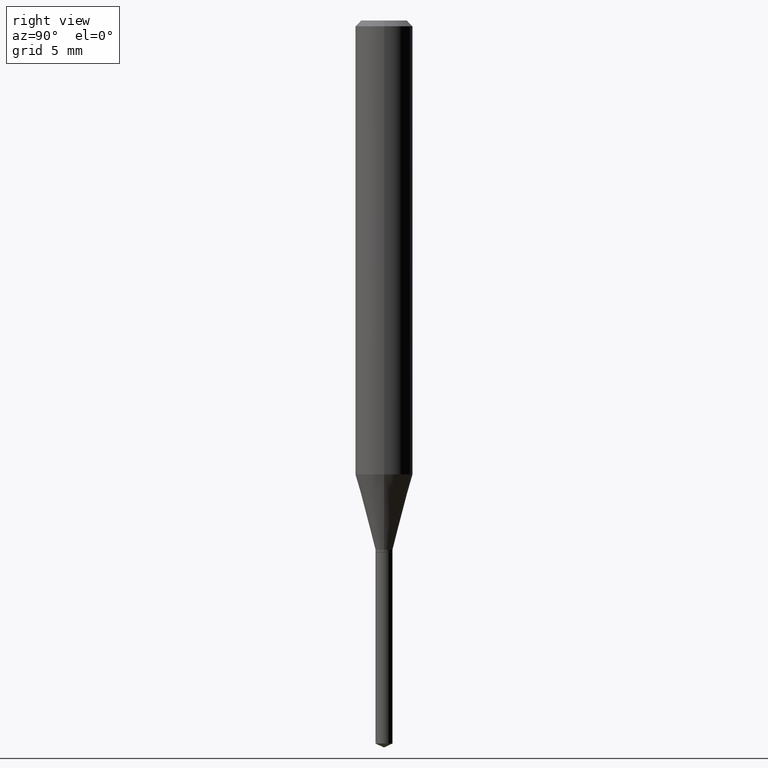
[diagram: clean part render]
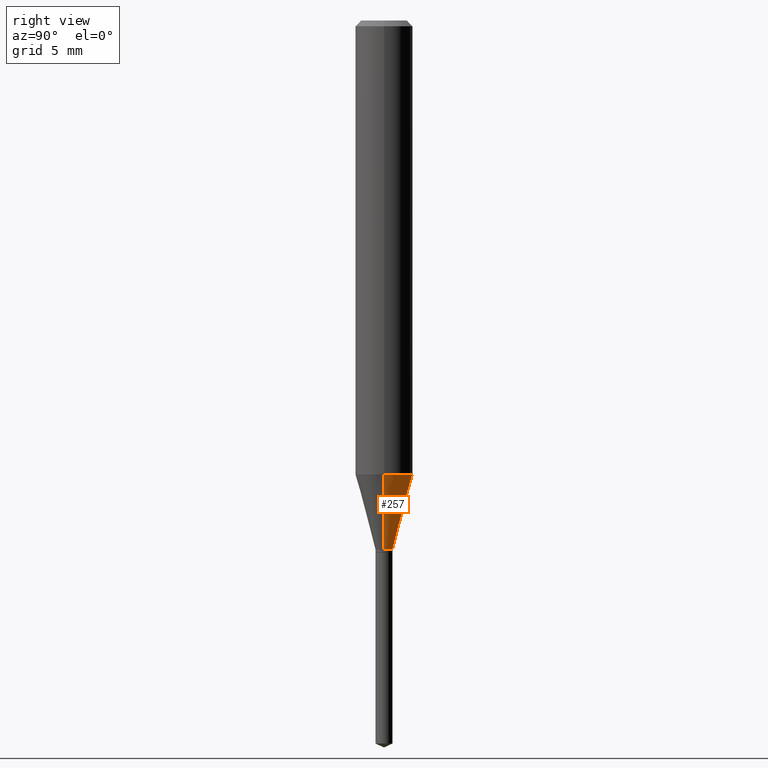
[diagram: same view with one face highlighted and labeled with its STEP entity id]
A machine part, right view. The second image highlights one B-rep face of the part: STEP entity #257.
In plain terms, the highlighted conical surface has half-angle 15 deg.
Its self-contained STEP definition (entity closure, byte-faithful):
#5 = CARTESIAN_POINT ( 'NONE',  ( -0.01750000000000000167, -3.686956050723160015E-15, -1.089199999999999946 ) ) ;
#18 = EDGE_LOOP ( 'NONE', ( #305, #204, #210, #284 ) ) ;
#20 = VECTOR ( 'NONE', #180, 39.37007874015747433 ) ;
#25 = DIRECTION ( 'NONE',  ( -2.445468806185136597E-29, 3.491481338843145583E-15, 1.000000000000000000 ) ) ;
#61 = VERTEX_POINT ( 'NONE', #381 ) ;
#68 = VERTEX_POINT ( 'NONE', #5 ) ;
#88 = CONICAL_SURFACE ( 'NONE', #475, 0.01750000000000000167, 0.2617993877991500740 ) ;
#92 = CARTESIAN_POINT ( 'NONE',  ( 2.663604623696850789E-29, -3.802921474267954047E-15, -1.089199999999999946 ) ) ;
#120 = EDGE_CURVE ( 'NONE', #61, #408, #393, .T. ) ;
#131 = FACE_OUTER_BOUND ( 'NONE', #18, .T. ) ;
#145 = AXIS2_PLACEMENT_3D ( 'NONE', #196, #229, #343 ) ;
#146 = LINE ( 'NONE', #189, #20 ) ;
#173 = LINE ( 'NONE', #323, #237 ) ;
#180 = DIRECTION ( 'NONE',  ( -0.2588190451025213501, 5.211531920934551042E-15, 0.9659258262890682012 ) ) ;
#189 = CARTESIAN_POINT ( 'NONE',  ( -0.01750000000000000167, -3.678576495509936798E-15, -1.089199999999999946 ) ) ;
#196 = CARTESIAN_POINT ( 'NONE',  ( 2.284393818935379026E-29, -3.261508946345431277E-15, -0.9341332889455130628 ) ) ;
#204 = ORIENTED_EDGE ( 'NONE', *, *, #364, .T. ) ;
#210 = ORIENTED_EDGE ( 'NONE', *, *, #120, .F. ) ;
#214 = CARTESIAN_POINT ( 'NONE',  ( -0.05905000000000010241, -2.841933460879091389E-15, -0.9341332889455130628 ) ) ;
#229 = DIRECTION ( 'NONE',  ( -2.445468806185136597E-29, 3.491481338843145583E-15, 1.000000000000000000 ) ) ;
#232 = EDGE_CURVE ( 'NONE', #327, #68, #271, .T. ) ;
#237 = VECTOR ( 'NONE', #250, 39.37007874015747433 ) ;
#250 = DIRECTION ( 'NONE',  ( 0.2588190451025213501, 1.565188264969621968E-15, 0.9659258262890682012 ) ) ;
#257 = ADVANCED_FACE ( 'NONE', ( #131 ), #88, .T. ) ;
#271 = CIRCLE ( 'NONE', #405, 0.01750000000000000167 ) ;
#280 = DIRECTION ( 'NONE',  ( 1.000000000000000000, -6.982962677686276966E-15, 0.000000000000000000 ) ) ;
#283 = DIRECTION ( 'NONE',  ( 1.000000000000000000, -6.982962677686276966E-15, 0.000000000000000000 ) ) ;
#284 = ORIENTED_EDGE ( 'NONE', *, *, #321, .F. ) ;
#305 = ORIENTED_EDGE ( 'NONE', *, *, #232, .T. ) ;
#321 = EDGE_CURVE ( 'NONE', #327, #61, #173, .T. ) ;
#323 = CARTESIAN_POINT ( 'NONE',  ( 0.01750000000000000167, -3.925123321127464030E-15, -1.089199999999999946 ) ) ;
#327 = VERTEX_POINT ( 'NONE', #399 ) ;
#343 = DIRECTION ( 'NONE',  ( 1.000000000000000000, -6.982962677686267499E-15, 0.000000000000000000 ) ) ;
#355 = DIRECTION ( 'NONE',  ( -2.445468806185136597E-29, 3.491481338843145583E-15, 1.000000000000000000 ) ) ;
#364 = EDGE_CURVE ( 'NONE', #68, #408, #146, .T. ) ;
#381 = CARTESIAN_POINT ( 'NONE',  ( 0.05905000000000010241, -3.673852892462806197E-15, -0.9341332889455130628 ) ) ;
#393 = CIRCLE ( 'NONE', #145, 0.05905000000000010935 ) ;
#399 = CARTESIAN_POINT ( 'NONE',  ( 0.01750000000000000167, -3.925123321127464030E-15, -1.089199999999999946 ) ) ;
#405 = AXIS2_PLACEMENT_3D ( 'NONE', #468, #355, #283 ) ;
#408 = VERTEX_POINT ( 'NONE', #214 ) ;
#468 = CARTESIAN_POINT ( 'NONE',  ( 2.663604623696850789E-29, -3.802921474267954047E-15, -1.089199999999999946 ) ) ;
#475 = AXIS2_PLACEMENT_3D ( 'NONE', #92, #25, #280 ) ;